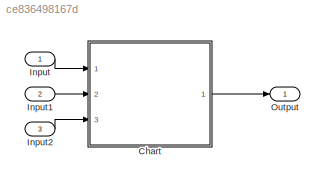
MODEL slx_ce836498167d
KIND model
CONFIG AbsTol = auto
CONFIG EnableMultiTasking = off
CONFIG FixedStep = auto
CONFIG MaxStep = auto
CONFIG MinStep = auto
CONFIG RelTol = 1e-3
CONFIG SampleTimeConstraint = Unconstrained
CONFIG SolverName = VariableStepAuto
CONFIG StartTime = 0.0
CONFIG StopTime = 10.0
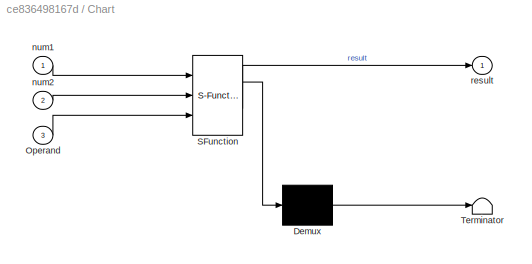
BLOCK [SubSystem] Chart
  ErrorFcn = Stateflow.Translate.translate
  PermitHierarchicalResolution = ExplicitOnly
  Ports = [3, 1]
  RequestExecContextInheritance = off
  SFBlockType = Chart
  TreatAsAtomicUnit = on
BLOCK [Demux] Chart/ Demux 
  Outputs = 1
  Ports = [1, 1]
BLOCK [S-Function] Chart/ SFunction 
  EnableBusSupport = on
  FunctionName = sf_sfun
  PortCounts = [3 2]
  Ports = [3, 2]
  SFcnIsStateOwnerBlock = off
  SFunctionDeploymentMode = off
  Tag = Stateflow S-Function 3
BLOCK [Terminator] Chart/ Terminator 
BLOCK [Inport] Chart/Operand
  Port = 3
BLOCK [Inport] Chart/num1
BLOCK [Inport] Chart/num2
  Port = 2
BLOCK [Outport] Chart/result
BLOCK [Inport] Input
BLOCK [Inport] Input1
  Port = 2
BLOCK [Inport] Input2
  Port = 3
BLOCK [Outport] Output
LINE Chart:1 -> Output:1
LINE Input1:1 -> Chart:2
LINE Input2:1 -> Chart:3
LINE Input:1 -> Chart:1
CHART Chart states=5 transitions=27
  STATE_LABEL 'add(n1,n2)'
  STATE_LABEL '{result=n1+n2;}'
  STATE_LABEL 'Do not put any code along\nthe transitions that run\ndown the right side!'
  STATE_LABEL 'sub(n1,n2)'
  STATE_LABEL '{result=n1-n2;}\n'
  STATE_LABEL 'mul(n1,n2)'
  STATE_LABEL '{result=n1*n2;}'
  STATE_LABEL 'div(n1,n2)'
  STATE_LABEL '{result=n1/n2;}'
CHART  states=0 transitions=0
